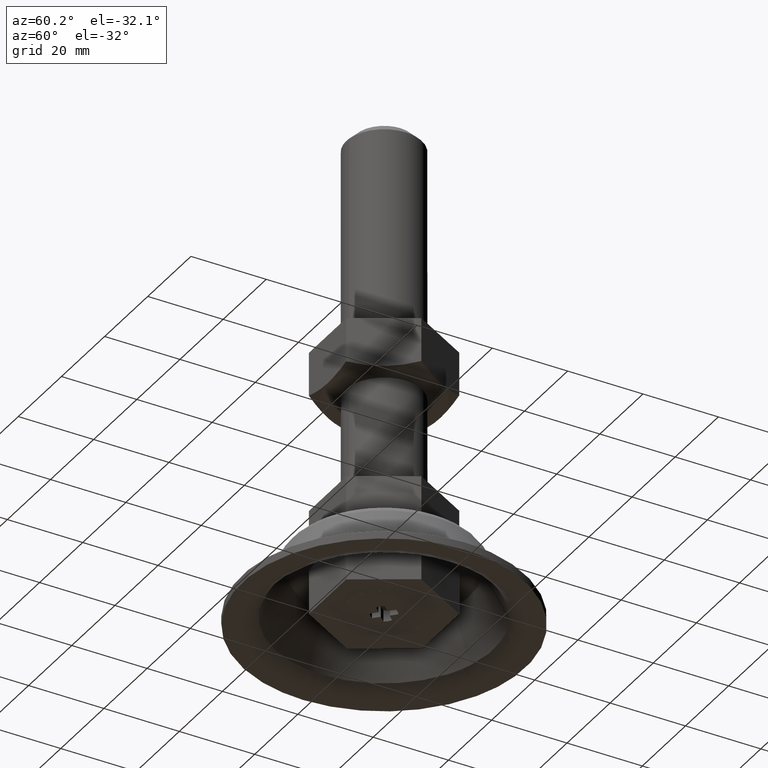
[diagram: clean part render]
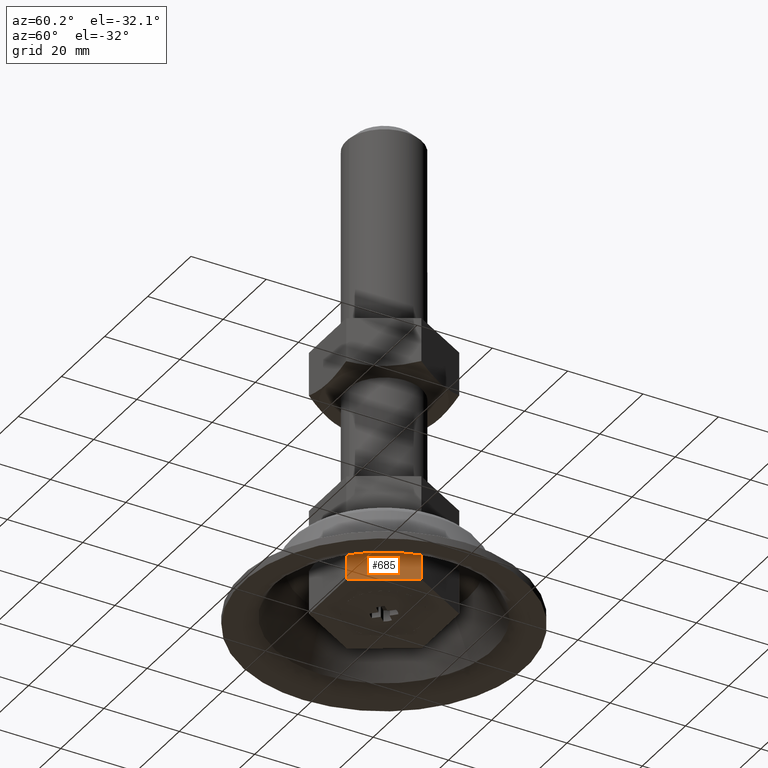
[diagram: same view with one face highlighted and labeled with its STEP entity id]
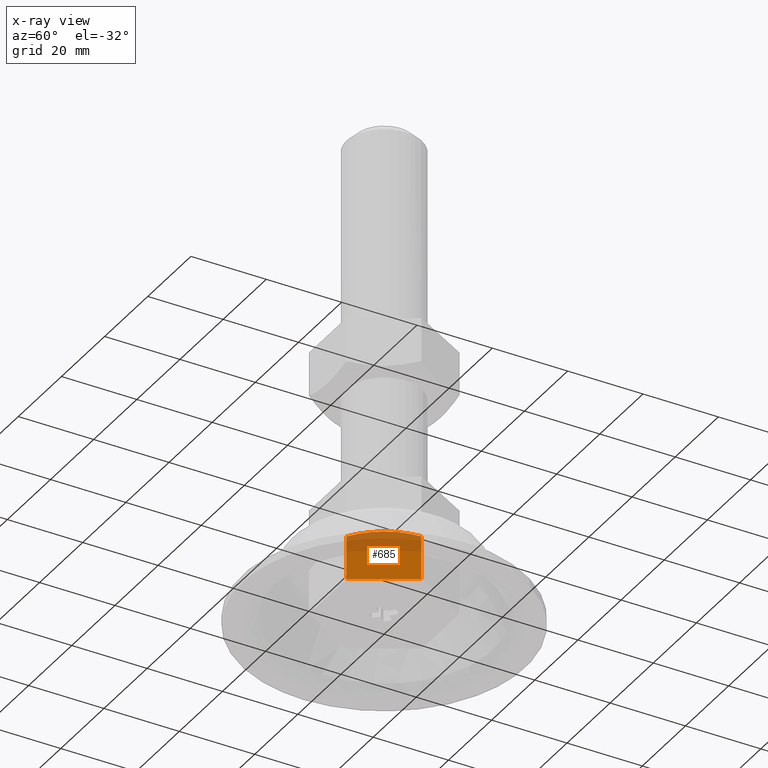
[diagram: x-ray of the same camera — body ghosted, the highlighted face saturated]
A machine part, auxiliary view. The second image highlights one B-rep face of the part: STEP entity #685.
The next image is the same camera in x-ray: the body ghosted, the highlighted face saturated — about 39% of this face is hidden behind the body in this view.
In plain terms, the highlighted face is a freeform B-spline surface patch.
Its self-contained STEP definition (entity closure, byte-faithful):
#243=CARTESIAN_POINT('',(-8.639746000000001,-15.0,62.345671394023498));
#244=VERTEX_POINT('',#243);
#267=CARTESIAN_POINT('',(-17.300000000000001,-3.847792E-016,62.339745951231102));
#268=VERTEX_POINT('',#267);
#269=CARTESIAN_POINT('',(-17.300000000000001,-3.847792E-016,62.339745951231102));
#270=CARTESIAN_POINT('',(-16.592941722767922,-1.224660865429836,61.931525664537929));
#271=CARTESIAN_POINT('',(-15.880722203566391,-2.458261264219856,61.595166574800167));
#272=CARTESIAN_POINT('',(-14.801235094892700,-4.327987790728781,61.245981053792342));
#273=CARTESIAN_POINT('',(-14.439541958482780,-4.954458682477314,61.155540189446192));
#274=CARTESIAN_POINT('',(-13.711936844397609,-6.214707713426930,61.033398389028733));
#275=CARTESIAN_POINT('',(-13.346021212827781,-6.848492181359093,61.001748326998843));
#276=CARTESIAN_POINT('',(-12.885799685170870,-7.645619253481179,61.001546577078052));
#277=CARTESIAN_POINT('',(-12.793614645803361,-7.805288426061178,61.003465697697358));
#278=CARTESIAN_POINT('',(-12.608961067811631,-8.125117806339848,61.011251166375267));
#279=CARTESIAN_POINT('',(-12.516661840701410,-8.284984757892698,61.017113104138417));
#280=CARTESIAN_POINT('',(-12.240427566274530,-8.763436558082766,61.040486526452412));
#281=CARTESIAN_POINT('',(-12.056912984918901,-9.081293138309434,61.063800979005457));
#282=CARTESIAN_POINT('',(-11.508210259183780,-10.031674141687260,61.155931109065449));
#283=CARTESIAN_POINT('',(-11.144867414517440,-10.661002411966070,61.246985155436597));
#284=CARTESIAN_POINT('',(-10.061320491401849,-12.537760743388411,61.598259512653499));
#285=CARTESIAN_POINT('',(-9.347572270797715,-13.774008930688909,61.936281682498588));
#286=CARTESIAN_POINT('',(-8.639746000000001,-15.0,62.345671394023498));
#287=B_SPLINE_CURVE_WITH_KNOTS('',3,(#269,#270,#271,#272,#273,#274,#275,#276,#277,#278,#279,#280,#281,#282,#283,#284,#285,#286),.UNSPECIFIED.,.F.,.U.,(4,2,2,2,2,2,2,2,4),(0.0,0.250000000000000,0.375000000000000,0.500000000000000,0.531250000000000,0.562500000000000,0.625000000000000,0.750000000000000,1.0),.UNSPECIFIED.);
#288=EDGE_CURVE('',#268,#244,#287,.T.);
#519=CARTESIAN_POINT('',(-8.639746000000001,-15.0,74.0));
#520=VERTEX_POINT('',#519);
#521=CARTESIAN_POINT('',(-17.300000000000001,0.0,74.0));
#522=VERTEX_POINT('',#521);
#523=CARTESIAN_POINT('',(-8.639746000000001,-15.0,74.0));
#524=CARTESIAN_POINT('',(-17.300000000000001,0.0,74.0));
#525=QUASI_UNIFORM_CURVE('',1,(#523,#524),.UNSPECIFIED.,.F.,.U.);
#526=EDGE_CURVE('',#520,#522,#525,.T.);
#593=CARTESIAN_POINT('',(-8.639746000000001,-15.0,74.0));
#594=CARTESIAN_POINT('',(-8.639746000000001,-15.0,62.345671394023498));
#595=QUASI_UNIFORM_CURVE('',1,(#593,#594),.UNSPECIFIED.,.F.,.U.);
#596=EDGE_CURVE('',#520,#244,#595,.T.);
#665=CARTESIAN_POINT('',(-17.300000000000001,0.0,74.0));
#666=CARTESIAN_POINT('',(-17.300000000000001,-3.847792E-016,62.339745951231102));
#667=QUASI_UNIFORM_CURVE('',1,(#665,#666),.UNSPECIFIED.,.F.,.U.);
#668=EDGE_CURVE('',#522,#268,#667,.T.);
#674=CARTESIAN_POINT('',(-17.732579507922260,0.749249689308524,60.352316161138162));
#675=CARTESIAN_POINT('',(-8.207166104934260,-15.749250359860810,60.352316161138162));
#676=CARTESIAN_POINT('',(-17.732579507922260,0.749249689308524,74.649271059209553));
#677=CARTESIAN_POINT('',(-8.207166104934260,-15.749250359860810,74.649271059209553));
#678=B_SPLINE_SURFACE_WITH_KNOTS('',1,1,((#674,#676),(#675,#677)),.UNSPECIFIED.,.F.,.F.,.U.,(2,2),(2,2),(0.0,19.050826868413449),(0.0,14.296954898071400),.UNSPECIFIED.);
#679=ORIENTED_EDGE('',*,*,#668,.T.);
#680=ORIENTED_EDGE('',*,*,#288,.T.);
#681=ORIENTED_EDGE('',*,*,#596,.F.);
#682=ORIENTED_EDGE('',*,*,#526,.T.);
#683=EDGE_LOOP('',(#679,#680,#681,#682));
#684=FACE_OUTER_BOUND('',#683,.T.);
#685=ADVANCED_FACE('',(#684),#678,.T.);